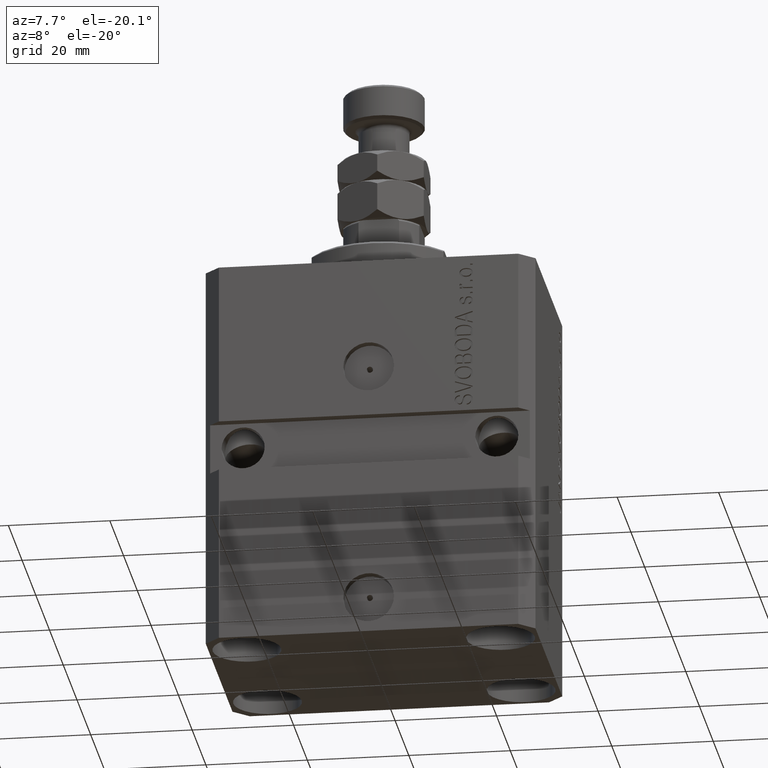
[diagram: clean part render]
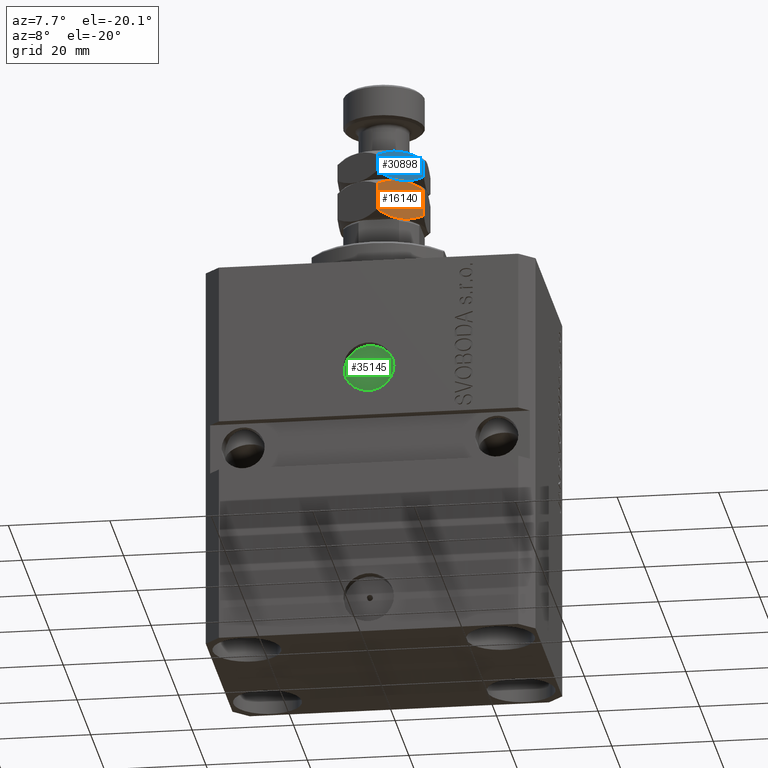
[diagram: same view with three faces highlighted in distinct colors, each labeled with its STEP entity id]
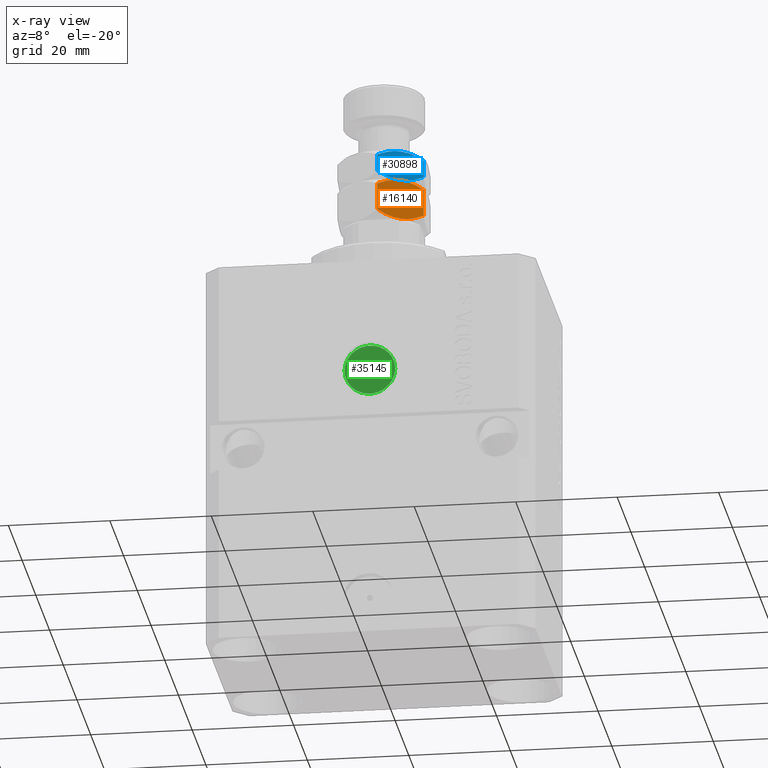
[diagram: x-ray of the same camera — body ghosted, the three highlighted faces saturated]
A machine part, auxiliary view with three faces highlighted in distinct colors.
The next image is the same camera in x-ray (body ghosted, the three faces saturated) — at least one of them is partly hidden behind the body in this view.
Their STEP definitions:

[orange] entity #16140 — the highlighted planar face has unit normal (-0.5, 0.866, 0).
#34 = CARTESIAN_POINT ( 'NONE',  ( -1.010883460254179403E-15, -9.814954576223637872, 1.314954576223630323 ) ) ;
#1084 = CARTESIAN_POINT ( 'NONE',  ( 4.249999999999994671, -7.361215932167728404, 8.000000000000000000 ) ) ;
#1144 = CARTESIAN_POINT ( 'NONE',  ( 1.350892646810552433, -9.035016342941277756, 0.6009384127361203642 ) ) ;
#1263 = EDGE_LOOP ( 'NONE', ( #24417, #12192, #31230, #33255, #28380, #35380 ) ) ;
#1771 = CARTESIAN_POINT ( 'NONE',  ( 5.715920793973914726, -6.514866167156222687, 7.869479712616787026 ) ) ;
#2148 = LINE ( 'NONE', #5885, #40921 ) ;
#2502 = DIRECTION ( 'NONE',  ( -0.4999999999999995559, 0.8660254037844389297, 0.000000000000000000 ) ) ;
#2835 = B_SPLINE_CURVE_WITH_KNOTS ( 'NONE', 3,
 ( #44199, #26755, #12304, #44428, #40025, #26523, #8358, #22576 ),
 .UNSPECIFIED., .F., .F.,
 ( 4, 2, 2, 4 ),
 ( 2.544313836654547822E-07, 0.002543776790731953636, 0.003815537970406099148, 0.005087299150080244227 ),
 .UNSPECIFIED. ) ;
#2887 = VECTOR ( 'NONE', #29139, 1000.000000000000000 ) ;
#5885 = CARTESIAN_POINT ( 'NONE',  ( 8.500000000000001776, -4.907477288111821601, 8.000000000000000000 ) ) ;
#5997 = CARTESIAN_POINT ( 'NONE',  ( -9.757819552369539906E-16, -9.814954576223637872, 8.000000000000000000 ) ) ;
#6408 = CARTESIAN_POINT ( 'NONE',  ( 2.766281260884825066, -8.217841345597570069, 7.839178292058168296 ) ) ;
#7104 = CARTESIAN_POINT ( 'NONE',  ( 3.877770021349439045, -7.576123010542081815, 8.000000000000003553 ) ) ;
#7941 = VERTEX_POINT ( 'NONE', #27025 ) ;
#8358 = CARTESIAN_POINT ( 'NONE',  ( 4.622229978650556070, -7.146308853793384763, -1.291725244562808017E-15 ) ) ;
#8616 = CARTESIAN_POINT ( 'NONE',  ( -1.010883460254179403E-15, -9.814954576223637872, 1.314954576223630323 ) ) ;
#10368 = CARTESIAN_POINT ( 'NONE',  ( 3.499970675361007366, -7.794245564648166535, 7.966263250401633300 ) ) ;
#11173 = VERTEX_POINT ( 'NONE', #25012 ) ;
#11817 = CARTESIAN_POINT ( 'NONE',  ( 8.500000000000001776, -4.907477288111821601, 6.685045423776368345 ) ) ;
#12192 = ORIENTED_EDGE ( 'NONE', *, *, #41666, .F. ) ;
#12304 = CARTESIAN_POINT ( 'NONE',  ( 7.151994807070145121, -5.685748449118888104, 0.6032092124201289263 ) ) ;
#15325 = CARTESIAN_POINT ( 'NONE',  ( 7.834310611062749174, -5.291813236011422283, 7.069381371676068504 ) ) ;
#15624 = VERTEX_POINT ( 'NONE', #34 ) ;
#16140 = ADVANCED_FACE ( 'NONE', ( #31158 ), #23725, .F. ) ;
#16671 = B_SPLINE_CURVE_WITH_KNOTS ( 'NONE', 3,
 ( #1084, #36491, #1771, #26715, #15325, #11817 ),
 .UNSPECIFIED., .F., .F.,
 ( 4, 2, 4 ),
 ( 0.005087299150080232951, 0.007613005268011856577, 0.01013871138594348020 ),
 .UNSPECIFIED. ) ;
#17132 = EDGE_CURVE ( 'NONE', #11173, #7941, #16671, .T. ) ;
#19398 = VERTEX_POINT ( 'NONE', #33630 ) ;
#19729 = CARTESIAN_POINT ( 'NONE',  ( -7.581970720220202129E-16, -9.814954576223637872, 6.685045423776371010 ) ) ;
#21092 = CARTESIAN_POINT ( 'NONE',  ( 4.249999999999994671, -7.361215932167728404, 8.000000000000000000 ) ) ;
#22576 = CARTESIAN_POINT ( 'NONE',  ( 4.249999999999997335, -7.361215932167732845, 0.000000000000000000 ) ) ;
#22597 = CARTESIAN_POINT ( 'NONE',  ( 3.510754653168322914, -7.788019432158174382, -1.295960409299079124E-15 ) ) ;
#22840 = LINE ( 'NONE', #25642, #2887 ) ;
#23725 = PLANE ( 'NONE',  #35927 ) ;
#24417 = ORIENTED_EDGE ( 'NONE', *, *, #42184, .F. ) ;
#25012 = CARTESIAN_POINT ( 'NONE',  ( 4.249999999999994671, -7.361215932167728404, 8.000000000000000000 ) ) ;
#25642 = CARTESIAN_POINT ( 'NONE',  ( -9.757819552369539906E-16, -9.814954576223637872, 8.000000000000000000 ) ) ;
#26523 = CARTESIAN_POINT ( 'NONE',  ( 5.000029324638989081, -6.928186299687297378, 0.03373674959836757414 ) ) ;
#26715 = CARTESIAN_POINT ( 'NONE',  ( 7.149107353189445568, -5.687415521394182605, 7.399061587263878970 ) ) ;
#26755 = CARTESIAN_POINT ( 'NONE',  ( 7.833539178395718672, -5.292258622869395523, 0.9301732414660633941 ) ) ;
#27025 = CARTESIAN_POINT ( 'NONE',  ( 8.500000000000001776, -4.907477288111821601, 6.685045423776368345 ) ) ;
#27446 = DIRECTION ( 'NONE',  ( -0.8660254037844389297, -0.4999999999999995559, 0.000000000000000000 ) ) ;
#28309 = CARTESIAN_POINT ( 'NONE',  ( -7.581970720220202129E-16, -9.814954576223637872, 6.685045423776371010 ) ) ;
#28380 = ORIENTED_EDGE ( 'NONE', *, *, #38741, .T. ) ;
#29139 = DIRECTION ( 'NONE',  ( -0.000000000000000000, -0.000000000000000000, -1.000000000000000000 ) ) ;
#30350 = DIRECTION ( 'NONE',  ( -0.000000000000000000, -0.000000000000000000, -1.000000000000000000 ) ) ;
#30488 = CARTESIAN_POINT ( 'NONE',  ( 4.249999999999997335, -7.361215932167732845, 0.000000000000000000 ) ) ;
#31158 = FACE_OUTER_BOUND ( 'NONE', #1263, .T. ) ;
#31230 = ORIENTED_EDGE ( 'NONE', *, *, #17132, .F. ) ;
#31557 = CARTESIAN_POINT ( 'NONE',  ( 0.6664608216042839928, -9.430173241466070166, 7.069826758533944933 ) ) ;
#33255 = ORIENTED_EDGE ( 'NONE', *, *, #34865, .F. ) ;
#33630 = CARTESIAN_POINT ( 'NONE',  ( 4.249999999999997335, -7.361215932167732845, 0.000000000000000000 ) ) ;
#33814 = B_SPLINE_CURVE_WITH_KNOTS ( 'NONE', 3,
 ( #30488, #22597, #40273, #1144, #36776, #8616 ),
 .UNSPECIFIED., .F., .F.,
 ( 4, 2, 4 ),
 ( 0.005087299150080244227, 0.007613005268011863516, 0.01013871138594348367 ),
 .UNSPECIFIED. ) ;
#34731 = VERTEX_POINT ( 'NONE', #19729 ) ;
#34865 = EDGE_CURVE ( 'NONE', #34731, #11173, #42156, .T. ) ;
#35380 = ORIENTED_EDGE ( 'NONE', *, *, #43480, .F. ) ;
#35793 = VERTEX_POINT ( 'NONE', #43655 ) ;
#35927 = AXIS2_PLACEMENT_3D ( 'NONE', #5997, #2502, #27446 ) ;
#36491 = CARTESIAN_POINT ( 'NONE',  ( 4.989245346831671313, -6.934412432177284202, 8.000000000000001776 ) ) ;
#36776 = CARTESIAN_POINT ( 'NONE',  ( 0.6656893889372494932, -9.430618628324040742, 0.9306186283239298307 ) ) ;
#38741 = EDGE_CURVE ( 'NONE', #34731, #15624, #22840, .T. ) ;
#40025 = CARTESIAN_POINT ( 'NONE',  ( 5.733718739115172269, -6.504590518737895621, 0.1608217079418340634 ) ) ;
#40273 = CARTESIAN_POINT ( 'NONE',  ( 2.784079206026082609, -8.207565697179241226, 0.1305202873832139177 ) ) ;
#40921 = VECTOR ( 'NONE', #30350, 1000.000000000000000 ) ;
#41666 = EDGE_CURVE ( 'NONE', #7941, #35793, #2148, .T. ) ;
#42156 = B_SPLINE_CURVE_WITH_KNOTS ( 'NONE', 3,
 ( #28309, #31557, #42257, #45300, #6408, #10368, #7104, #21092 ),
 .UNSPECIFIED., .F., .F.,
 ( 4, 2, 2, 4 ),
 ( 2.544313836662128767E-07, 0.002543776790731947998, 0.003815537970406090475, 0.005087299150080232951 ),
 .UNSPECIFIED. ) ;
#42184 = EDGE_CURVE ( 'NONE', #35793, #19398, #2835, .T. ) ;
#42257 = CARTESIAN_POINT ( 'NONE',  ( 1.348005192929855101, -9.036683415216574033, 7.396790787579876181 ) ) ;
#43480 = EDGE_CURVE ( 'NONE', #19398, #15624, #33814, .T. ) ;
#43655 = CARTESIAN_POINT ( 'NONE',  ( 8.500000000000001776, -4.907477288111817160, 1.314954576223629878 ) ) ;
#44199 = CARTESIAN_POINT ( 'NONE',  ( 8.500000000000001776, -4.907477288111817160, 1.314954576223629878 ) ) ;
#44428 = CARTESIAN_POINT ( 'NONE',  ( 6.092930036521920556, -6.297199779484154547, 0.2536240893246553552 ) ) ;
#45300 = CARTESIAN_POINT ( 'NONE',  ( 2.407069963478076335, -8.425232084851307590, 7.746375910675348031 ) ) ;

[blue] entity #30898 — the highlighted planar face has unit normal (-0.5, 0.866, 0).
#593 = CARTESIAN_POINT ( 'NONE',  ( 0.6656893889372508255, -9.430618628324038966, 8.930618628323932384 ) ) ;
#1124 = ORIENTED_EDGE ( 'NONE', *, *, #19613, .F. ) ;
#2401 = CARTESIAN_POINT ( 'NONE',  ( -5.628679446399007628E-16, -9.814954576223636096, 12.68504542377636568 ) ) ;
#2490 = CARTESIAN_POINT ( 'NONE',  ( 8.499999999999996447, -4.907477288111814495, 14.00000000000000000 ) ) ;
#2716 = CARTESIAN_POINT ( 'NONE',  ( 4.250000000000000000, -7.361215932167723963, 14.00000000000000000 ) ) ;
#2954 = EDGE_CURVE ( 'NONE', #7765, #11200, #25503, .T. ) ;
#3326 = CARTESIAN_POINT ( 'NONE',  ( 0.6664608216042844369, -9.430173241466061285, 13.06982675853393516 ) ) ;
#5156 = CARTESIAN_POINT ( 'NONE',  ( 7.833539178395709790, -5.292258622869385754, 8.930173241466057732 ) ) ;
#5326 = CARTESIAN_POINT ( 'NONE',  ( 8.499999999999996447, -4.907477288111814495, 9.314954576223630767 ) ) ;
#6371 = CARTESIAN_POINT ( 'NONE',  ( 3.877770021349440821, -7.576123010542071157, 13.99999999999999289 ) ) ;
#7108 = ORIENTED_EDGE ( 'NONE', *, *, #13383, .F. ) ;
#7765 = VERTEX_POINT ( 'NONE', #17987 ) ;
#7902 = VECTOR ( 'NONE', #15326, 1000.000000000000000 ) ;
#8071 = CARTESIAN_POINT ( 'NONE',  ( 6.428361570398703622E-17, -9.814954576223636096, 9.314954576223632543 ) ) ;
#8561 = CARTESIAN_POINT ( 'NONE',  ( 4.887551235985699338E-16, -9.814954576223636096, 14.00000000000000000 ) ) ;
#9711 = CARTESIAN_POINT ( 'NONE',  ( 7.149107353189444680, -5.687415521394174611, 13.39906158726387986 ) ) ;
#10175 = CARTESIAN_POINT ( 'NONE',  ( 7.834310611062744734, -5.291813236011414290, 13.06938137167606939 ) ) ;
#11052 = CARTESIAN_POINT ( 'NONE',  ( 5.715920793973917391, -6.514866167156213805, 13.86947971261678347 ) ) ;
#11173 = VERTEX_POINT ( 'NONE', #25012 ) ;
#11200 = VERTEX_POINT ( 'NONE', #42448 ) ;
#13383 = EDGE_CURVE ( 'NONE', #11200, #35498, #21135, .T. ) ;
#13585 = B_SPLINE_CURVE_WITH_KNOTS ( 'NONE', 3,
 ( #25314, #15065, #15292, #36002, #593, #8071 ),
 .UNSPECIFIED., .F., .F.,
 ( 4, 2, 4 ),
 ( 0.005087299150080240757, 0.007613005268011858312, 0.01013871138594347673 ),
 .UNSPECIFIED. ) ;
#13602 = ORIENTED_EDGE ( 'NONE', *, *, #39451, .F. ) ;
#14556 = CARTESIAN_POINT ( 'NONE',  ( 8.499999999999996447, -4.907477288111814495, 12.68504542377636923 ) ) ;
#15065 = CARTESIAN_POINT ( 'NONE',  ( 3.510754653168321582, -7.788019432158173494, 8.000000000000000000 ) ) ;
#15292 = CARTESIAN_POINT ( 'NONE',  ( 2.784079206026080833, -8.207565697179237674, 8.130520287383214750 ) ) ;
#15326 = DIRECTION ( 'NONE',  ( -0.000000000000000000, -0.000000000000000000, -1.000000000000000000 ) ) ;
#16643 = CARTESIAN_POINT ( 'NONE',  ( 4.250000000000000000, -7.361215932167723963, 14.00000000000000000 ) ) ;
#16731 = DIRECTION ( 'NONE',  ( -0.000000000000000000, -0.000000000000000000, -1.000000000000000000 ) ) ;
#17987 = CARTESIAN_POINT ( 'NONE',  ( 4.250000000000000000, -7.361215932167723963, 14.00000000000000000 ) ) ;
#19613 = EDGE_CURVE ( 'NONE', #38187, #7765, #39331, .T. ) ;
#20144 = CARTESIAN_POINT ( 'NONE',  ( 1.348005192929855101, -9.036683415216568704, 13.39679078757987085 ) ) ;
#21089 = DIRECTION ( 'NONE',  ( -0.5000000000000004441, 0.8660254037844384856, 0.000000000000000000 ) ) ;
#21135 = LINE ( 'NONE', #2490, #24354 ) ;
#22091 = EDGE_CURVE ( 'NONE', #35498, #11173, #45269, .T. ) ;
#24090 = CARTESIAN_POINT ( 'NONE',  ( 2.766281260884826843, -8.217841345597564739, 13.83917829205816830 ) ) ;
#24354 = VECTOR ( 'NONE', #16731, 1000.000000000000000 ) ;
#25012 = CARTESIAN_POINT ( 'NONE',  ( 4.249999999999994671, -7.361215932167728404, 8.000000000000000000 ) ) ;
#25314 = CARTESIAN_POINT ( 'NONE',  ( 4.249999999999994671, -7.361215932167728404, 8.000000000000000000 ) ) ;
#25503 = B_SPLINE_CURVE_WITH_KNOTS ( 'NONE', 3,
 ( #2716, #43170, #11052, #9711, #10175, #14556 ),
 .UNSPECIFIED., .F., .F.,
 ( 4, 2, 4 ),
 ( 0.005087299150080239023, 0.007613005268011858312, 0.01013871138594347673 ),
 .UNSPECIFIED. ) ;
#26378 = CARTESIAN_POINT ( 'NONE',  ( 7.151994807070138016, -5.685748449118881886, 8.603209212420120267 ) ) ;
#26543 = ORIENTED_EDGE ( 'NONE', *, *, #2954, .F. ) ;
#28015 = EDGE_CURVE ( 'NONE', #38187, #34864, #29753, .T. ) ;
#29416 = CARTESIAN_POINT ( 'NONE',  ( 4.622229978650554294, -7.146308853793378546, 8.000000000000001776 ) ) ;
#29753 = LINE ( 'NONE', #8561, #7902 ) ;
#30898 = ADVANCED_FACE ( 'NONE', ( #42482 ), #42253, .F. ) ;
#31552 = CARTESIAN_POINT ( 'NONE',  ( 4.887551235985699338E-16, -9.814954576223636096, 14.00000000000000000 ) ) ;
#33574 = CARTESIAN_POINT ( 'NONE',  ( 5.000029324638988193, -6.928186299687292937, 8.033736749598364923 ) ) ;
#34312 = CARTESIAN_POINT ( 'NONE',  ( 2.407069963478077668, -8.425232084851300485, 13.74637591067534181 ) ) ;
#34539 = ORIENTED_EDGE ( 'NONE', *, *, #28015, .T. ) ;
#34864 = VERTEX_POINT ( 'NONE', #45761 ) ;
#35333 = EDGE_LOOP ( 'NONE', ( #45712, #7108, #26543, #1124, #34539, #13602 ) ) ;
#35498 = VERTEX_POINT ( 'NONE', #5326 ) ;
#36002 = CARTESIAN_POINT ( 'NONE',  ( 1.350892646810553321, -9.035016342941275980, 8.600938412736123695 ) ) ;
#36391 = CARTESIAN_POINT ( 'NONE',  ( 5.733718739115168717, -6.504590518737889404, 8.160821707941831704 ) ) ;
#37064 = CARTESIAN_POINT ( 'NONE',  ( 6.092930036521918780, -6.297199779484148330, 8.253624089324652857 ) ) ;
#38187 = VERTEX_POINT ( 'NONE', #44797 ) ;
#38265 = CARTESIAN_POINT ( 'NONE',  ( 3.499970675361009143, -7.794245564648159430, 13.96626325040163330 ) ) ;
#38996 = DIRECTION ( 'NONE',  ( -0.8660254037844383745, -0.5000000000000003331, 0.000000000000000000 ) ) ;
#39331 = B_SPLINE_CURVE_WITH_KNOTS ( 'NONE', 3,
 ( #2401, #3326, #20144, #34312, #24090, #38265, #6371, #16643 ),
 .UNSPECIFIED., .F., .F.,
 ( 4, 2, 2, 4 ),
 ( 2.544313836642342607E-07, 0.002543776790731951901, 0.003815537970406096113, 0.005087299150080239023 ),
 .UNSPECIFIED. ) ;
#39451 = EDGE_CURVE ( 'NONE', #11173, #34864, #13585, .T. ) ;
#40341 = CARTESIAN_POINT ( 'NONE',  ( 4.249999999999994671, -7.361215932167728404, 8.000000000000000000 ) ) ;
#42253 = PLANE ( 'NONE',  #44415 ) ;
#42448 = CARTESIAN_POINT ( 'NONE',  ( 8.499999999999996447, -4.907477288111814495, 12.68504542377636923 ) ) ;
#42482 = FACE_OUTER_BOUND ( 'NONE', #35333, .T. ) ;
#43146 = CARTESIAN_POINT ( 'NONE',  ( 8.499999999999996447, -4.907477288111814495, 9.314954576223630767 ) ) ;
#43170 = CARTESIAN_POINT ( 'NONE',  ( 4.989245346831673089, -6.934412432177277097, 13.99999999999999822 ) ) ;
#44415 = AXIS2_PLACEMENT_3D ( 'NONE', #31552, #21089, #38996 ) ;
#44797 = CARTESIAN_POINT ( 'NONE',  ( -5.628679446399007628E-16, -9.814954576223636096, 12.68504542377636568 ) ) ;
#45269 = B_SPLINE_CURVE_WITH_KNOTS ( 'NONE', 3,
 ( #43146, #5156, #26378, #37064, #36391, #33574, #29416, #40341 ),
 .UNSPECIFIED., .F., .F.,
 ( 4, 2, 2, 4 ),
 ( 2.544313836655798784E-07, 0.002543776790731953202, 0.003815537970406096980, 0.005087299150080240757 ),
 .UNSPECIFIED. ) ;
#45712 = ORIENTED_EDGE ( 'NONE', *, *, #22091, .F. ) ;
#45761 = CARTESIAN_POINT ( 'NONE',  ( 6.428361570398703622E-17, -9.814954576223636096, 9.314954576223632543 ) ) ;

[green] entity #35145 — the highlighted planar face has unit normal (0, -1, 0).
#790 = AXIS2_PLACEMENT_3D ( 'NONE', #15202, #21735, #32657 ) ;
#3650 = ORIENTED_EDGE ( 'NONE', *, *, #40776, .T. ) ;
#4497 = DIRECTION ( 'NONE',  ( 1.176083712526788232E-16, -1.000000000000000000, 0.000000000000000000 ) ) ;
#5669 = CARTESIAN_POINT ( 'NONE',  ( 2.422732447805124080E-15, -20.59999999999949694, -22.00000000000000000 ) ) ;
#5966 = CARTESIAN_POINT ( 'NONE',  ( 2.422732447805124080E-15, -20.59999999999949694, -22.00000000000000000 ) ) ;
#10852 = CARTESIAN_POINT ( 'NONE',  ( 5.000000000000005329, -20.59999999999949694, -22.00000000000000000 ) ) ;
#11028 = VERTEX_POINT ( 'NONE', #11085 ) ;
#11085 = CARTESIAN_POINT ( 'NONE',  ( -0.6249999999999978906, -20.59999999999949694, -22.00000000000000000 ) ) ;
#13198 = CARTESIAN_POINT ( 'NONE',  ( 0.6250000000000026645, -20.59999999999949694, -22.00000000000000000 ) ) ;
#13542 = AXIS2_PLACEMENT_3D ( 'NONE', #5966, #20204, #27409 ) ;
#14315 = DIRECTION ( 'NONE',  ( 1.000000000000000000, 0.000000000000000000, 0.000000000000000000 ) ) ;
#15202 = CARTESIAN_POINT ( 'NONE',  ( 2.422732447805124080E-15, -20.59999999999949694, -22.00000000000000000 ) ) ;
#16419 = CIRCLE ( 'NONE', #42412, 5.000000000000002665 ) ;
#17899 = ORIENTED_EDGE ( 'NONE', *, *, #42553, .T. ) ;
#19905 = DIRECTION ( 'NONE',  ( 1.000000000000000000, 1.176083712526788232E-16, 0.000000000000000000 ) ) ;
#20132 = FACE_OUTER_BOUND ( 'NONE', #23356, .T. ) ;
#20204 = DIRECTION ( 'NONE',  ( 1.176083712526788232E-16, -1.000000000000000000, 0.000000000000000000 ) ) ;
#20895 = CIRCLE ( 'NONE', #13542, 0.6250000000000002220 ) ;
#21735 = DIRECTION ( 'NONE',  ( 1.176083712526788232E-16, -1.000000000000000000, 0.000000000000000000 ) ) ;
#21923 = EDGE_LOOP ( 'NONE', ( #21990, #37898 ) ) ;
#21990 = ORIENTED_EDGE ( 'NONE', *, *, #45214, .F. ) ;
#23356 = EDGE_LOOP ( 'NONE', ( #17899, #3650 ) ) ;
#23622 = FACE_BOUND ( 'NONE', #21923, .T. ) ;
#24471 = VERTEX_POINT ( 'NONE', #13198 ) ;
#24725 = CIRCLE ( 'NONE', #790, 0.6250000000000002220 ) ;
#25417 = CARTESIAN_POINT ( 'NONE',  ( -5.000000000000000000, -20.59999999999949694, -22.00000000000000000 ) ) ;
#25617 = DIRECTION ( 'NONE',  ( 1.000000000000000000, 0.000000000000000000, 0.000000000000000000 ) ) ;
#27104 = DIRECTION ( 'NONE',  ( 1.176083712526788232E-16, -1.000000000000000000, 0.000000000000000000 ) ) ;
#27409 = DIRECTION ( 'NONE',  ( 1.000000000000000000, 0.000000000000000000, 0.000000000000000000 ) ) ;
#28198 = CARTESIAN_POINT ( 'NONE',  ( 2.422732447805124080E-15, -20.59999999999949694, -22.00000000000000000 ) ) ;
#28293 = VERTEX_POINT ( 'NONE', #10852 ) ;
#31992 = AXIS2_PLACEMENT_3D ( 'NONE', #39677, #4497, #14315 ) ;
#32657 = DIRECTION ( 'NONE',  ( 1.000000000000000000, 0.000000000000000000, 0.000000000000000000 ) ) ;
#35145 = ADVANCED_FACE ( 'NONE', ( #23622, #20132 ), #37569, .T. ) ;
#35545 = AXIS2_PLACEMENT_3D ( 'NONE', #5669, #27104, #19905 ) ;
#35855 = DIRECTION ( 'NONE',  ( 1.176083712526788232E-16, -1.000000000000000000, 0.000000000000000000 ) ) ;
#37569 = PLANE ( 'NONE',  #35545 ) ;
#37898 = ORIENTED_EDGE ( 'NONE', *, *, #44998, .F. ) ;
#38842 = VERTEX_POINT ( 'NONE', #25417 ) ;
#39677 = CARTESIAN_POINT ( 'NONE',  ( 2.422732447805124080E-15, -20.59999999999949694, -22.00000000000000000 ) ) ;
#40776 = EDGE_CURVE ( 'NONE', #38842, #28293, #43164, .T. ) ;
#42412 = AXIS2_PLACEMENT_3D ( 'NONE', #28198, #35855, #25617 ) ;
#42553 = EDGE_CURVE ( 'NONE', #28293, #38842, #16419, .T. ) ;
#43164 = CIRCLE ( 'NONE', #31992, 5.000000000000002665 ) ;
#44998 = EDGE_CURVE ( 'NONE', #11028, #24471, #20895, .T. ) ;
#45214 = EDGE_CURVE ( 'NONE', #24471, #11028, #24725, .T. ) ;